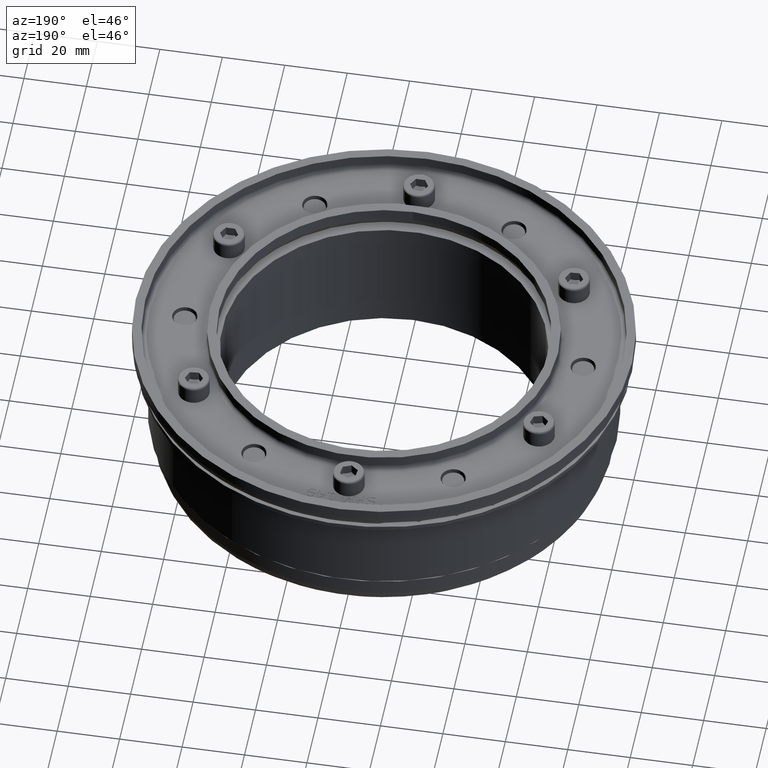
[diagram: clean part render]
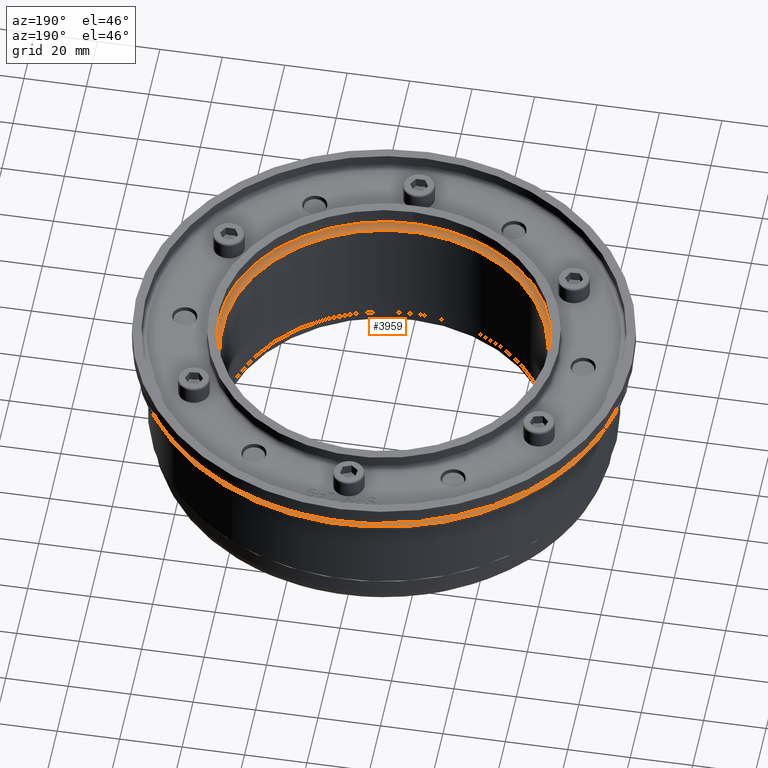
[diagram: same view with one face highlighted and labeled with its STEP entity id]
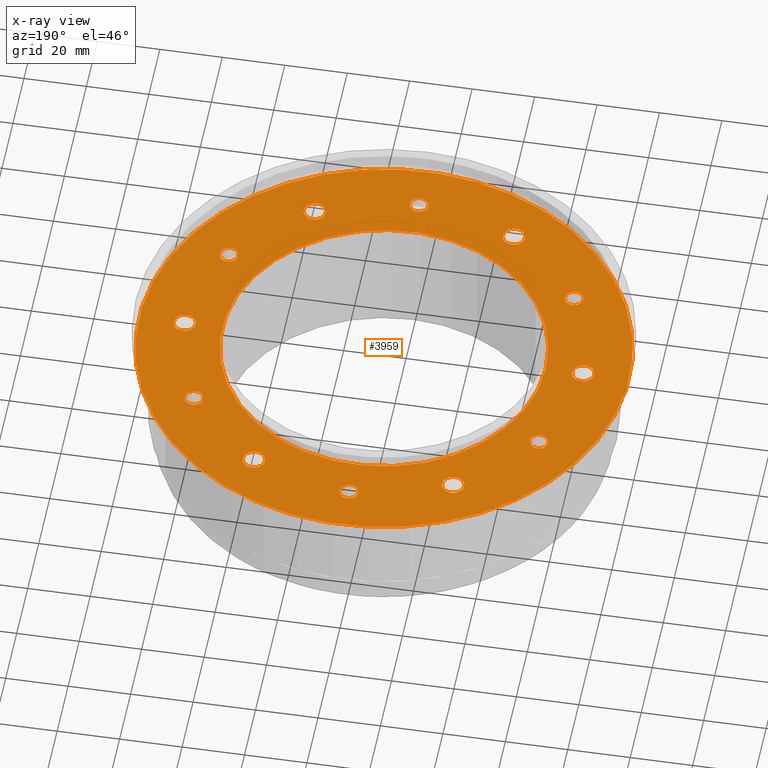
[diagram: x-ray of the same camera — body ghosted, the highlighted face saturated]
A machine part, auxiliary view. The second image highlights one B-rep face of the part: STEP entity #3959.
The next image is the same camera in x-ray: the body ghosted, the highlighted face saturated — about 0% of this face is hidden behind the body in this view.
In plain terms, the highlighted planar face has unit normal (0, -0, -1).
Its self-contained STEP definition (entity closure, byte-faithful):
#121=FACE_BOUND('',#700,.T.);
#122=FACE_BOUND('',#701,.T.);
#123=FACE_BOUND('',#702,.T.);
#124=FACE_BOUND('',#703,.T.);
#125=FACE_BOUND('',#704,.T.);
#126=FACE_BOUND('',#705,.T.);
#127=FACE_BOUND('',#706,.T.);
#128=FACE_BOUND('',#707,.T.);
#129=FACE_BOUND('',#708,.T.);
#130=FACE_BOUND('',#709,.T.);
#131=FACE_BOUND('',#710,.T.);
#132=FACE_BOUND('',#711,.T.);
#133=FACE_BOUND('',#712,.T.);
#197=PLANE('',#4400);
#485=FACE_OUTER_BOUND('',#699,.T.);
#699=EDGE_LOOP('',(#3007));
#700=EDGE_LOOP('',(#3008));
#701=EDGE_LOOP('',(#3009));
#702=EDGE_LOOP('',(#3010));
#703=EDGE_LOOP('',(#3011));
#704=EDGE_LOOP('',(#3012));
#705=EDGE_LOOP('',(#3013));
#706=EDGE_LOOP('',(#3014));
#707=EDGE_LOOP('',(#3015));
#708=EDGE_LOOP('',(#3016));
#709=EDGE_LOOP('',(#3017));
#710=EDGE_LOOP('',(#3018));
#711=EDGE_LOOP('',(#3019));
#712=EDGE_LOOP('',(#3020));
#1562=CIRCLE('',#4340,2.95);
#1563=CIRCLE('',#4342,2.95);
#1565=CIRCLE('',#4346,2.95);
#1572=CIRCLE('',#4357,2.95);
#1573=CIRCLE('',#4359,2.95);
#1580=CIRCLE('',#4371,2.95);
#1582=CIRCLE('',#4374,3.5);
#1584=CIRCLE('',#4378,3.5);
#1586=CIRCLE('',#4382,3.5);
#1588=CIRCLE('',#4386,3.5);
#1590=CIRCLE('',#4390,3.5);
#1592=CIRCLE('',#4394,3.5);
#1593=CIRCLE('',#4397,78.5);
#1594=CIRCLE('',#4399,51.8);
#1777=VERTEX_POINT('',#5944);
#1778=VERTEX_POINT('',#5948);
#1780=VERTEX_POINT('',#5955);
#1786=VERTEX_POINT('',#5974);
#1787=VERTEX_POINT('',#5978);
#1792=VERTEX_POINT('',#5997);
#1794=VERTEX_POINT('',#6003);
#1796=VERTEX_POINT('',#6010);
#1798=VERTEX_POINT('',#6017);
#1800=VERTEX_POINT('',#6024);
#1802=VERTEX_POINT('',#6031);
#1804=VERTEX_POINT('',#6038);
#1805=VERTEX_POINT('',#6043);
#1806=VERTEX_POINT('',#6047);
#2217=EDGE_CURVE('',#1777,#1777,#1562,.T.);
#2219=EDGE_CURVE('',#1778,#1778,#1563,.T.);
#2222=EDGE_CURVE('',#1780,#1780,#1565,.T.);
#2231=EDGE_CURVE('',#1786,#1786,#1572,.T.);
#2233=EDGE_CURVE('',#1787,#1787,#1573,.T.);
#2242=EDGE_CURVE('',#1792,#1792,#1580,.T.);
#2245=EDGE_CURVE('',#1794,#1794,#1582,.T.);
#2248=EDGE_CURVE('',#1796,#1796,#1584,.T.);
#2251=EDGE_CURVE('',#1798,#1798,#1586,.T.);
#2254=EDGE_CURVE('',#1800,#1800,#1588,.T.);
#2257=EDGE_CURVE('',#1802,#1802,#1590,.T.);
#2260=EDGE_CURVE('',#1804,#1804,#1592,.T.);
#2261=EDGE_CURVE('',#1805,#1805,#1593,.T.);
#2264=EDGE_CURVE('',#1806,#1806,#1594,.T.);
#3007=ORIENTED_EDGE('',*,*,#2261,.T.);
#3008=ORIENTED_EDGE('',*,*,#2245,.T.);
#3009=ORIENTED_EDGE('',*,*,#2248,.T.);
#3010=ORIENTED_EDGE('',*,*,#2251,.T.);
#3011=ORIENTED_EDGE('',*,*,#2254,.T.);
#3012=ORIENTED_EDGE('',*,*,#2257,.T.);
#3013=ORIENTED_EDGE('',*,*,#2260,.T.);
#3014=ORIENTED_EDGE('',*,*,#2264,.T.);
#3015=ORIENTED_EDGE('',*,*,#2219,.T.);
#3016=ORIENTED_EDGE('',*,*,#2217,.T.);
#3017=ORIENTED_EDGE('',*,*,#2231,.T.);
#3018=ORIENTED_EDGE('',*,*,#2242,.T.);
#3019=ORIENTED_EDGE('',*,*,#2222,.T.);
#3020=ORIENTED_EDGE('',*,*,#2233,.T.);
#3959=ADVANCED_FACE('',(#485,#121,#122,#123,#124,#125,#126,#127,#128,#129,
#130,#131,#132,#133),#197,.F.);
#4340=AXIS2_PLACEMENT_3D('',#5946,#4875,#4876);
#4342=AXIS2_PLACEMENT_3D('',#5950,#4880,#4881);
#4346=AXIS2_PLACEMENT_3D('',#5957,#4889,#4890);
#4357=AXIS2_PLACEMENT_3D('',#5976,#4913,#4914);
#4359=AXIS2_PLACEMENT_3D('',#5980,#4918,#4919);
#4371=AXIS2_PLACEMENT_3D('',#5999,#4944,#4945);
#4374=AXIS2_PLACEMENT_3D('',#6005,#4951,#4952);
#4378=AXIS2_PLACEMENT_3D('',#6012,#4960,#4961);
#4382=AXIS2_PLACEMENT_3D('',#6019,#4969,#4970);
#4386=AXIS2_PLACEMENT_3D('',#6026,#4978,#4979);
#4390=AXIS2_PLACEMENT_3D('',#6033,#4987,#4988);
#4394=AXIS2_PLACEMENT_3D('',#6040,#4996,#4997);
#4397=AXIS2_PLACEMENT_3D('',#6044,#5002,#5003);
#4399=AXIS2_PLACEMENT_3D('',#6049,#5008,#5009);
#4400=AXIS2_PLACEMENT_3D('',#6050,#5010,#5011);
#4875=DIRECTION('center_axis',(0.,0.,-1.));
#4876=DIRECTION('ref_axis',(-1.,0.,0.));
#4880=DIRECTION('center_axis',(0.,0.,-1.));
#4881=DIRECTION('ref_axis',(-1.,0.,0.));
#4889=DIRECTION('center_axis',(0.,0.,-1.));
#4890=DIRECTION('ref_axis',(-1.,0.,0.));
#4913=DIRECTION('center_axis',(0.,0.,-1.));
#4914=DIRECTION('ref_axis',(-1.,0.,0.));
#4918=DIRECTION('center_axis',(0.,0.,-1.));
#4919=DIRECTION('ref_axis',(-1.,0.,0.));
#4944=DIRECTION('center_axis',(0.,0.,-1.));
#4945=DIRECTION('ref_axis',(-1.,0.,0.));
#4951=DIRECTION('center_axis',(0.,0.,-1.));
#4952=DIRECTION('ref_axis',(-0.499999999999999,0.866025403784439,0.));
#4960=DIRECTION('center_axis',(0.,0.,-1.));
#4961=DIRECTION('ref_axis',(0.5,0.866025403784438,0.));
#4969=DIRECTION('center_axis',(0.,0.,-1.));
#4970=DIRECTION('ref_axis',(1.,-1.58603289232165E-16,0.));
#4978=DIRECTION('center_axis',(0.,0.,-1.));
#4979=DIRECTION('ref_axis',(0.5,-0.866025403784439,0.));
#4987=DIRECTION('center_axis',(0.,0.,-1.));
#4988=DIRECTION('ref_axis',(-0.5,-0.866025403784439,0.));
#4996=DIRECTION('center_axis',(0.,0.,-1.));
#4997=DIRECTION('ref_axis',(-1.,0.,0.));
#5002=DIRECTION('center_axis',(0.,0.,1.));
#5003=DIRECTION('ref_axis',(0.,-1.,-1.83697019872103E-16));
#5008=DIRECTION('center_axis',(0.,0.,-1.));
#5009=DIRECTION('ref_axis',(-1.,0.,0.));
#5010=DIRECTION('center_axis',(0.,0.,-1.));
#5011=DIRECTION('ref_axis',(-1.,0.,0.));
#5944=CARTESIAN_POINT('',(-52.3024207614471,-31.9000000000001,37.));
#5946=CARTESIAN_POINT('Origin',(-55.2524207614471,-31.9000000000001,37.));
#5948=CARTESIAN_POINT('',(-52.3024207614473,31.8999999999999,37.));
#5950=CARTESIAN_POINT('Origin',(-55.2524207614472,31.8999999999999,37.));
#5955=CARTESIAN_POINT('',(2.94999999999999,63.8,37.));
#5957=CARTESIAN_POINT('Origin',(-1.56264931571202E-14,63.8,37.));
#5974=CARTESIAN_POINT('',(58.2024207614472,-31.8999999999999,37.));
#5976=CARTESIAN_POINT('Origin',(55.2524207614472,-31.8999999999999,37.));
#5978=CARTESIAN_POINT('',(2.95000000000008,-63.8,37.));
#5980=CARTESIAN_POINT('Origin',(8.14570633167477E-14,-63.8,37.));
#5997=CARTESIAN_POINT('',(58.2024207614472,31.9,37.));
#5999=CARTESIAN_POINT('Origin',(55.2524207614472,31.9,37.));
#6003=CARTESIAN_POINT('',(65.55,-3.0310889132456,37.));
#6005=CARTESIAN_POINT('Origin',(63.8,-7.02959771482578E-14,37.));
#6010=CARTESIAN_POINT('',(30.15,-58.2835096746928,37.));
#6012=CARTESIAN_POINT('Origin',(31.9,-55.2524207614472,37.));
#6017=CARTESIAN_POINT('',(-35.4,-55.2524207614472,37.));
#6019=CARTESIAN_POINT('Origin',(-31.9,-55.2524207614472,37.));
#6024=CARTESIAN_POINT('',(-65.55,3.03108891324557,37.));
#6026=CARTESIAN_POINT('Origin',(-63.8,3.62854332157572E-14,37.));
#6031=CARTESIAN_POINT('',(-30.15,58.2835096746927,37.));
#6033=CARTESIAN_POINT('Origin',(-31.9,55.2524207614472,37.));
#6038=CARTESIAN_POINT('',(35.4,55.2524207614472,37.));
#6040=CARTESIAN_POINT('Origin',(31.9,55.2524207614472,37.));
#6043=CARTESIAN_POINT('',(-9.61347737330672E-15,78.5,37.));
#6044=CARTESIAN_POINT('Origin',(0.,-6.79678973526781E-15,37.));
#6047=CARTESIAN_POINT('',(51.8,6.89878193189587E-15,37.));
#6049=CARTESIAN_POINT('Origin',(-5.55111512312578E-16,5.55111512312578E-16,
37.));
#6050=CARTESIAN_POINT('Origin',(-5.55111512312578E-16,5.55111512312578E-16,
37.));